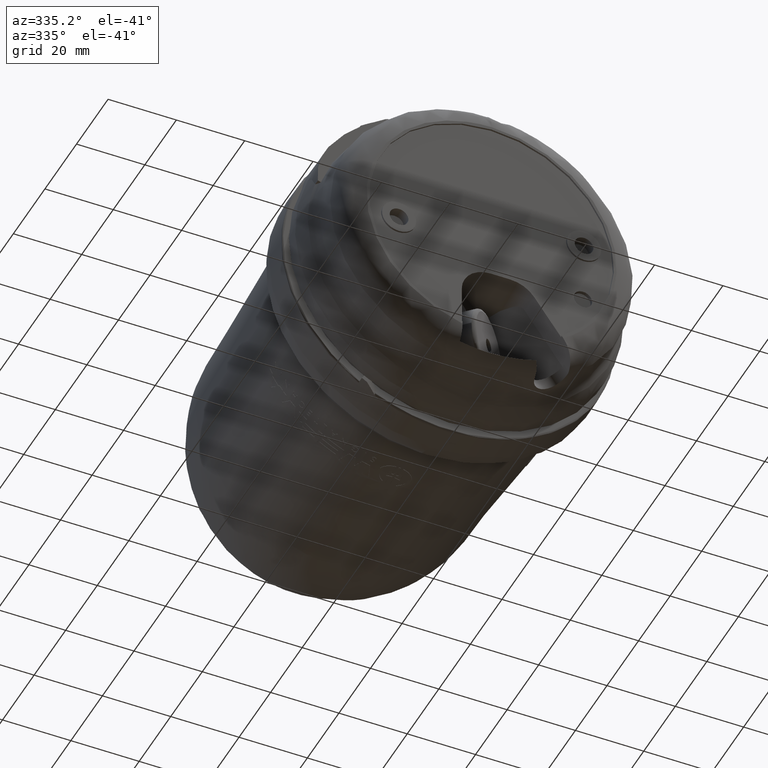
[diagram: clean part render]
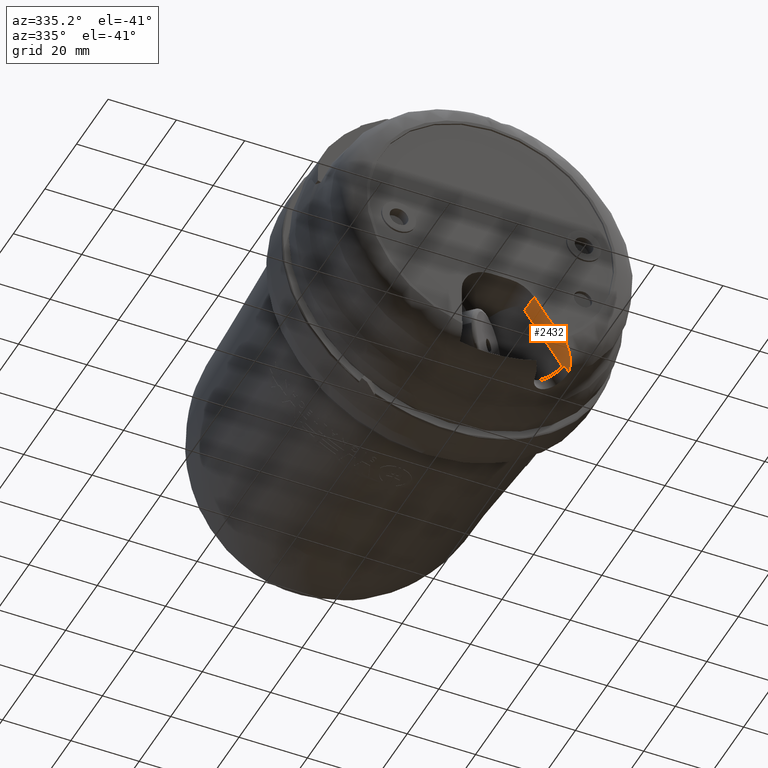
[diagram: same view with one face highlighted and labeled with its STEP entity id]
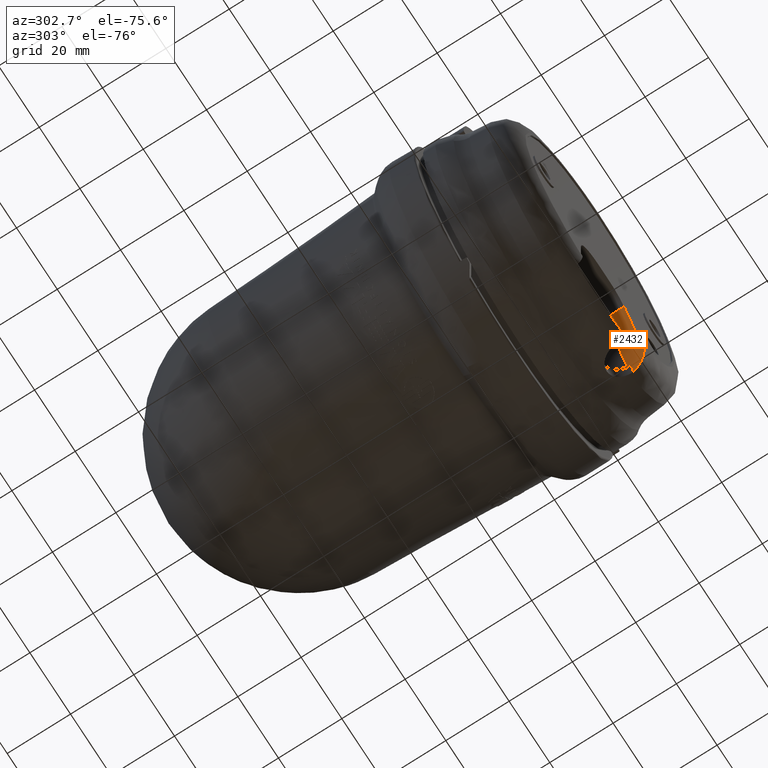
[diagram: same view with one face highlighted and labeled with its STEP entity id]
A machine part, auxiliary view. The second image highlights one B-rep face of the part: STEP entity #2432.
A second angle (auxiliary view) of the same face is appended — the face is thin or edge-on in the first view.
In plain terms, the highlighted planar face has unit normal (-0.8192, 0, -0.5736).
Its self-contained STEP definition (entity closure, byte-faithful):
#207 = LINE ( 'NONE', #26939, #19249 ) ;
#961 = VERTEX_POINT ( 'NONE', #30139 ) ;
#1600 = ORIENTED_EDGE ( 'NONE', *, *, #25879, .T. ) ;
#2048 = CARTESIAN_POINT ( 'NONE',  ( 0.8271602528632412400, -9.889290062900815100E-017, -1.181307266382939100 ) ) ;
#2149 = CARTESIAN_POINT ( 'NONE',  ( 0.9847522438389139100, 0.1859421257423813600, -1.406371954173367700 ) ) ;
#2432 = ADVANCED_FACE ( 'NONE', ( #15315 ), #5028, .T. ) ;
#2933 = CARTESIAN_POINT ( 'NONE',  ( 0.9343477313562784700, 0.2560047737645225200, -1.334386850140497200 ) ) ;
#3022 = EDGE_CURVE ( 'NONE', #15593, #12523, #5201, .T. ) ;
#3100 = ORIENTED_EDGE ( 'NONE', *, *, #22519, .T. ) ;
#4288 = ORIENTED_EDGE ( 'NONE', *, *, #3022, .T. ) ;
#4354 = CARTESIAN_POINT ( 'NONE',  ( 0.8271602528632412400, -9.889290062900815100E-017, -1.181307266382939100 ) ) ;
#4528 = CARTESIAN_POINT ( 'NONE',  ( 0.8637070730791238700, 0.005160636282707123900, -1.233501534827014000 ) ) ;
#4633 = CARTESIAN_POINT ( 'NONE',  ( 0.9903905353155373300, 0.2165354330708659200, -1.414424268907138200 ) ) ;
#5013 = VECTOR ( 'NONE', #25716, 39.37007874015748100 ) ;
#5028 = PLANE ( 'NONE',  #19667 ) ;
#5201 = LINE ( 'NONE', #15792, #11101 ) ;
#5409 = LINE ( 'NONE', #18157, #12068 ) ;
#5676 = DIRECTION ( 'NONE',  ( 0.5735764363510459400, 0.0000000000000000000, -0.8191520442889916900 ) ) ;
#6817 = DIRECTION ( 'NONE',  ( -0.5735764363510459400, 0.0000000000000000000, 0.8191520442889916900 ) ) ;
#7015 = CARTESIAN_POINT ( 'NONE',  ( 0.8984446486116285400, 0.02695573098545203300, -1.283111934082814500 ) ) ;
#7344 = CARTESIAN_POINT ( 'NONE',  ( 0.8084266307624988800, 0.0000000000000000000, -1.154552881320704400 ) ) ;
#7422 = CARTESIAN_POINT ( 'NONE',  ( 0.8084266307624989900, 0.01968503937007874000, -1.154552881320704400 ) ) ;
#7532 = EDGE_CURVE ( 'NONE', #8866, #7977, #14639, .T. ) ;
#7571 = VERTEX_POINT ( 'NONE', #7422 ) ;
#7858 = VERTEX_POINT ( 'NONE', #31134 ) ;
#7920 = CARTESIAN_POINT ( 'NONE',  ( 0.9348844277533044900, 0.3197153993318912500, -1.335153332030071900 ) ) ;
#7977 = VERTEX_POINT ( 'NONE', #16776 ) ;
#8866 = VERTEX_POINT ( 'NONE', #4354 ) ;
#9545 = CARTESIAN_POINT ( 'NONE',  ( 0.9222938915519377500, 0.05045576449423358500, -1.317172182850326200 ) ) ;
#10725 = DIRECTION ( 'NONE',  ( 0.0000000000000000000, 1.000000000000000000, 0.0000000000000000000 ) ) ;
#11101 = VECTOR ( 'NONE', #10725, 39.37007874015748100 ) ;
#11696 = LINE ( 'NONE', #13176, #5013 ) ;
#11955 = CARTESIAN_POINT ( 'NONE',  ( 0.8456857128903503300, 8.537024980200824100E-018, -1.207764365194636800 ) ) ;
#12054 = CARTESIAN_POINT ( 'NONE',  ( 0.9438638388659933400, 0.08069986557676751800, -1.347977260112426700 ) ) ;
#12068 = VECTOR ( 'NONE', #5676, 39.37007874015748900 ) ;
#12179 = VERTEX_POINT ( 'NONE', #19634 ) ;
#12422 = ORIENTED_EDGE ( 'NONE', *, *, #28581, .T. ) ;
#12523 = VERTEX_POINT ( 'NONE', #24600 ) ;
#12531 = CARTESIAN_POINT ( 'NONE',  ( 0.9348844277532808400, 0.1181102362204724500, -1.335153332030088300 ) ) ;
#12678 = LINE ( 'NONE', #28965, #31624 ) ;
#13176 = CARTESIAN_POINT ( 'NONE',  ( 0.9348844277532808400, 0.8405511811023621500, -1.335153332030088300 ) ) ;
#14166 = DIRECTION ( 'NONE',  ( 0.5735764363510459400, -0.0000000000000000000, -0.8191520442889916900 ) ) ;
#14229 = LINE ( 'NONE', #7344, #19230 ) ;
#14512 = CARTESIAN_POINT ( 'NONE',  ( 0.9621579861260505200, 0.1162488535398773100, -1.374104010056923500 ) ) ;
#14639 = B_SPLINE_CURVE_WITH_KNOTS ( 'NONE', 3,
 ( #2048, #11955, #4528, #21855, #7015, #24350, #9545, #26823, #12054, #29311, #14512, #31757, #17014, #2149, #19460, #4633 ),
 .UNSPECIFIED., .F., .F.,
 ( 4, 2, 2, 2, 2, 2, 2, 4 ),
 ( 0.0000000000000000000, 0.002426187357986250200, 0.003639281036979375600, 0.004852374715972500500, 0.006065468394965625400, 0.007278562073958751200, 0.008491655752951875200, 0.009704749431944999200 ),
 .UNSPECIFIED. ) ;
#14674 = EDGE_CURVE ( 'NONE', #7571, #15593, #17734, .T. ) ;
#14997 = DIRECTION ( 'NONE',  ( -0.5735764363510459400, 0.0000000000000000000, 0.8191520442889916900 ) ) ;
#15157 = VERTEX_POINT ( 'NONE', #23697 ) ;
#15315 = FACE_OUTER_BOUND ( 'NONE', #27406, .T. ) ;
#15593 = VERTEX_POINT ( 'NONE', #21156 ) ;
#15792 = CARTESIAN_POINT ( 'NONE',  ( 0.4996449508191896900, 0.1181102362204724500, -0.7135669405911854200 ) ) ;
#16776 = CARTESIAN_POINT ( 'NONE',  ( 0.9903905353155373300, 0.2165354330708659200, -1.414424268907138200 ) ) ;
#17014 = CARTESIAN_POINT ( 'NONE',  ( 0.9770618870645912900, 0.1569221553817826700, -1.395388986474983100 ) ) ;
#17320 = DIRECTION ( 'NONE',  ( 0.0000000000000000000, 1.000000000000000000, 0.0000000000000000000 ) ) ;
#17581 = EDGE_CURVE ( 'NONE', #961, #7571, #14229, .T. ) ;
#17734 = LINE ( 'NONE', #24144, #24330 ) ;
#17791 = CARTESIAN_POINT ( 'NONE',  ( 0.9345484912798544000, 0.2772410367761293200, -1.334673565025170400 ) ) ;
#17845 = ORIENTED_EDGE ( 'NONE', *, *, #17581, .T. ) ;
#18157 = CARTESIAN_POINT ( 'NONE',  ( 0.6540357907908446200, 0.2165354330708661700, -0.9340599109559450900 ) ) ;
#19036 = ORIENTED_EDGE ( 'NONE', *, *, #19618, .T. ) ;
#19230 = VECTOR ( 'NONE', #17320, 39.37007874015748100 ) ;
#19249 = VECTOR ( 'NONE', #21774, 39.37007874015748900 ) ;
#19460 = CARTESIAN_POINT ( 'NONE',  ( 0.9879204739785894000, 0.2009711332482902200, -1.410896655732246000 ) ) ;
#19618 = EDGE_CURVE ( 'NONE', #15157, #12179, #22054, .T. ) ;
#19634 = CARTESIAN_POINT ( 'NONE',  ( 0.9348844277533044900, 0.3197153993318912500, -1.335153332030071900 ) ) ;
#19667 = AXIS2_PLACEMENT_3D ( 'NONE', #12531, #29793, #14997 ) ;
#21156 = CARTESIAN_POINT ( 'NONE',  ( 0.4996449508191898000, 0.01968503937007874000, -0.7135669405911855300 ) ) ;
#21774 = DIRECTION ( 'NONE',  ( -0.5735764363510459400, 0.0000000000000000000, 0.8191520442889916900 ) ) ;
#21855 = CARTESIAN_POINT ( 'NONE',  ( 0.8899875762973119600, 0.02059532347622884300, -1.271033983114249600 ) ) ;
#22054 =( BOUNDED_CURVE ( )  B_SPLINE_CURVE ( 3, ( #2933, #17791, #22771, #7920 ),
 .UNSPECIFIED., .F., .F. ) 
 B_SPLINE_CURVE_WITH_KNOTS ( ( 4, 4 ),
 ( 1.553734650312997000, 1.557450675042533400 ),
 .UNSPECIFIED. ) 
 CURVE ( )  GEOMETRIC_REPRESENTATION_ITEM ( )  RATIONAL_B_SPLINE_CURVE ( ( 1.000000000000000000, 0.9999988492636818800, 0.9999988492636818800, 1.000000000000000000 ) ) 
 REPRESENTATION_ITEM ( '' )  );
#22519 = EDGE_CURVE ( 'NONE', #7858, #7977, #5409, .T. ) ;
#22771 = CARTESIAN_POINT ( 'NONE',  ( 0.9347273902847184100, 0.2984779364033273700, -1.334929059282375000 ) ) ;
#22891 = ORIENTED_EDGE ( 'NONE', *, *, #7532, .F. ) ;
#23293 = ORIENTED_EDGE ( 'NONE', *, *, #14674, .T. ) ;
#23697 = CARTESIAN_POINT ( 'NONE',  ( 0.9343477313562784700, 0.2560047737645225200, -1.334386850140497200 ) ) ;
#24144 = CARTESIAN_POINT ( 'NONE',  ( 0.9348844277532808400, 0.01968503937007874000, -1.335153332030088300 ) ) ;
#24330 = VECTOR ( 'NONE', #6817, 39.37007874015748900 ) ;
#24350 = CARTESIAN_POINT ( 'NONE',  ( 0.9145813056510073700, 0.04187632259909245000, -1.306157468669084400 ) ) ;
#24600 = CARTESIAN_POINT ( 'NONE',  ( 0.4996449508191898000, 0.2560047737645225200, -0.7135669405911855300 ) ) ;
#25716 = DIRECTION ( 'NONE',  ( -0.0000000000000000000, -1.000000000000000000, -0.0000000000000000000 ) ) ;
#25879 = EDGE_CURVE ( 'NONE', #12179, #7858, #11696, .T. ) ;
#26823 = CARTESIAN_POINT ( 'NONE',  ( 0.9369854498711096500, 0.06992255466457010500, -1.338153902579786400 ) ) ;
#26939 = CARTESIAN_POINT ( 'NONE',  ( 0.9348844277532808400, -1.707404996040164500E-016, -1.335153332030088300 ) ) ;
#27406 = EDGE_LOOP ( 'NONE', ( #23293, #4288, #12422, #19036, #1600, #3100, #22891, #30191, #17845 ) ) ;
#28581 = EDGE_CURVE ( 'NONE', #12523, #15157, #12678, .T. ) ;
#28965 = CARTESIAN_POINT ( 'NONE',  ( 0.9348844277532808400, 0.2560047737645222400, -1.335153332030088300 ) ) ;
#29175 = EDGE_CURVE ( 'NONE', #8866, #961, #207, .T. ) ;
#29311 = CARTESIAN_POINT ( 'NONE',  ( 0.9564257330545760100, 0.1038314701235169800, -1.365917504258756400 ) ) ;
#29793 = DIRECTION ( 'NONE',  ( -0.8191520442889919100, 0.0000000000000000000, -0.5735764363510460500 ) ) ;
#30139 = CARTESIAN_POINT ( 'NONE',  ( 0.8084266307624989900, -1.618620017705121600E-016, -1.154552881320704400 ) ) ;
#30191 = ORIENTED_EDGE ( 'NONE', *, *, #29175, .T. ) ;
#31134 = CARTESIAN_POINT ( 'NONE',  ( 0.9348844277532808400, 0.2165354330708661700, -1.335153332030088300 ) ) ;
#31624 = VECTOR ( 'NONE', #14166, 39.37007874015748900 ) ;
#31757 = CARTESIAN_POINT ( 'NONE',  ( 0.9724978070962906300, 0.1428291481987575800, -1.388870804765643100 ) ) ;